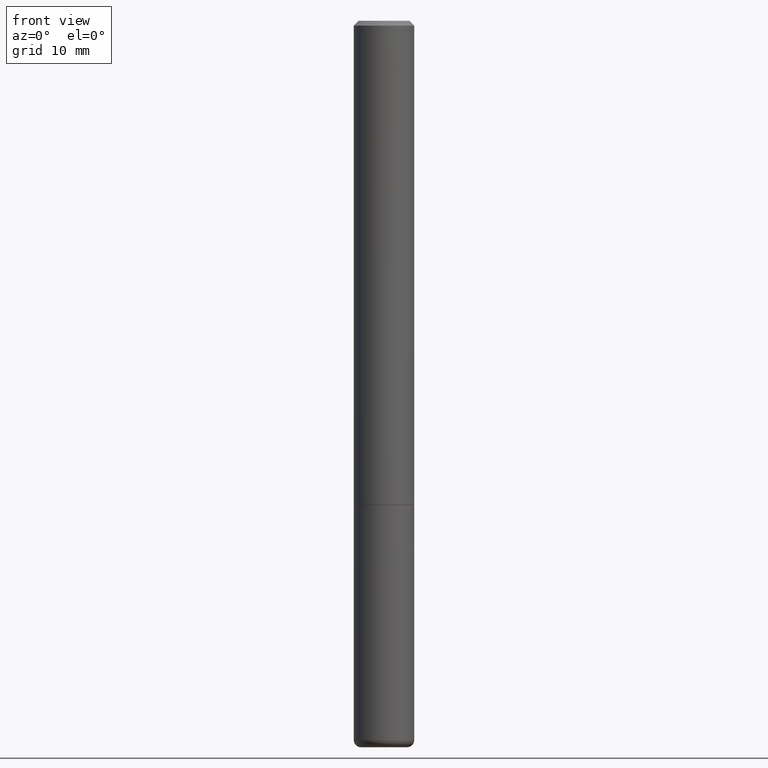
[diagram: clean part render]
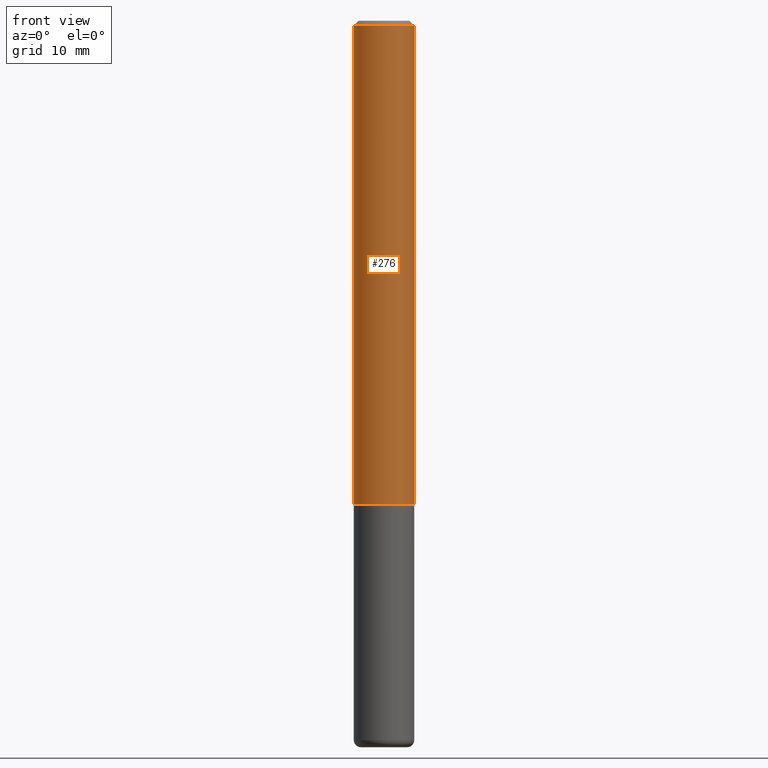
[diagram: same view with one face highlighted and labeled with its STEP entity id]
A machine part, front view. The second image highlights one B-rep face of the part: STEP entity #276.
In plain terms, the highlighted cylindrical surface (edge-blend (fillet) strip) has radius 3.175 mm, axis along (-0, 0, 1).
Its self-contained STEP definition (entity closure, byte-faithful):
#2 = EDGE_CURVE ( 'NONE', #89, #54, #96, .T. ) ;
#20 = DIRECTION ( 'NONE',  ( -2.445468806185136597E-29, 3.491481338843145583E-15, 1.000000000000000000 ) ) ;
#33 = EDGE_CURVE ( 'NONE', #89, #216, #57, .T. ) ;
#43 = LINE ( 'NONE', #274, #111 ) ;
#51 = ORIENTED_EDGE ( 'NONE', *, *, #2, .F. ) ;
#54 = VERTEX_POINT ( 'NONE', #63 ) ;
#57 = CIRCLE ( 'NONE', #181, 0.1250000000000002498 ) ;
#63 = CARTESIAN_POINT ( 'NONE',  ( -0.1249999999999999584, 8.030407079339200406E-16, -0.02000000000000006287 ) ) ;
#72 = CARTESIAN_POINT ( 'NONE',  ( 0.1249999999999999584, -9.273918764983043491E-16, -0.02000000000000006287 ) ) ;
#79 = DIRECTION ( 'NONE',  ( 1.000000000000000000, -6.982962677686266711E-15, 4.876176775795935232E-29 ) ) ;
#89 = VERTEX_POINT ( 'NONE', #224 ) ;
#92 = DIRECTION ( 'NONE',  ( -2.445468806185136597E-29, 3.491481338843145583E-15, 1.000000000000000000 ) ) ;
#96 = LINE ( 'NONE', #177, #334 ) ;
#111 = VECTOR ( 'NONE', #404, 39.37007874015748143 ) ;
#113 = VERTEX_POINT ( 'NONE', #72 ) ;
#120 = AXIS2_PLACEMENT_3D ( 'NONE', #141, #20, #79 ) ;
#141 = CARTESIAN_POINT ( 'NONE',  ( 0.000000000000000000, 0.000000000000000000, 0.000000000000000000 ) ) ;
#144 = ORIENTED_EDGE ( 'NONE', *, *, #300, .T. ) ;
#175 = EDGE_LOOP ( 'NONE', ( #51, #399, #144, #286 ) ) ;
#177 = CARTESIAN_POINT ( 'NONE',  ( -0.1250000000000001110, 8.881784197001260212E-16, -6.148668862818637832E-30 ) ) ;
#181 = AXIS2_PLACEMENT_3D ( 'NONE', #322, #92, #220 ) ;
#193 = DIRECTION ( 'NONE',  ( 1.000000000000000000, -6.982962677686267499E-15, 0.000000000000000000 ) ) ;
#195 = DIRECTION ( 'NONE',  ( -2.445468806185136597E-29, 3.491481338843145583E-15, 1.000000000000000000 ) ) ;
#216 = VERTEX_POINT ( 'NONE', #303 ) ;
#220 = DIRECTION ( 'NONE',  ( 1.000000000000000000, -6.982962677686264344E-15, 0.000000000000000000 ) ) ;
#224 = CARTESIAN_POINT ( 'NONE',  ( -0.1250000000000002776, -2.636471991862024185E-15, -1.999000000000000110 ) ) ;
#225 = CARTESIAN_POINT ( 'NONE',  ( 4.890937612370288923E-31, -6.982962677686312563E-17, -0.02000000000000006287 ) ) ;
#270 = FACE_OUTER_BOUND ( 'NONE', #175, .T. ) ;
#274 = CARTESIAN_POINT ( 'NONE',  ( 0.1250000000000001110, -8.728703347107841277E-16, 6.095220969744924646E-30 ) ) ;
#276 = ADVANCED_FACE ( 'NONE', ( #270 ), #311, .T. ) ;
#286 = ORIENTED_EDGE ( 'NONE', *, *, #348, .F. ) ;
#300 = EDGE_CURVE ( 'NONE', #216, #113, #43, .T. ) ;
#303 = CARTESIAN_POINT ( 'NONE',  ( 0.1250000000000002498, -7.852341531058233864E-15, -1.999000000000000110 ) ) ;
#309 = CIRCLE ( 'NONE', #398, 0.1249999999999999584 ) ;
#311 = CYLINDRICAL_SURFACE ( 'NONE', #120, 0.1250000000000001110 ) ;
#322 = CARTESIAN_POINT ( 'NONE',  ( 4.888492143564088712E-29, -6.979471196347448158E-15, -1.999000000000000110 ) ) ;
#334 = VECTOR ( 'NONE', #382, 39.37007874015748143 ) ;
#348 = EDGE_CURVE ( 'NONE', #54, #113, #309, .T. ) ;
#382 = DIRECTION ( 'NONE',  ( -2.445468806185136877E-29, 3.491481338843145188E-15, 1.000000000000000000 ) ) ;
#398 = AXIS2_PLACEMENT_3D ( 'NONE', #225, #195, #193 ) ;
#399 = ORIENTED_EDGE ( 'NONE', *, *, #33, .T. ) ;
#404 = DIRECTION ( 'NONE',  ( -2.445468806185136877E-29, 3.491481338843145188E-15, 1.000000000000000000 ) ) ;